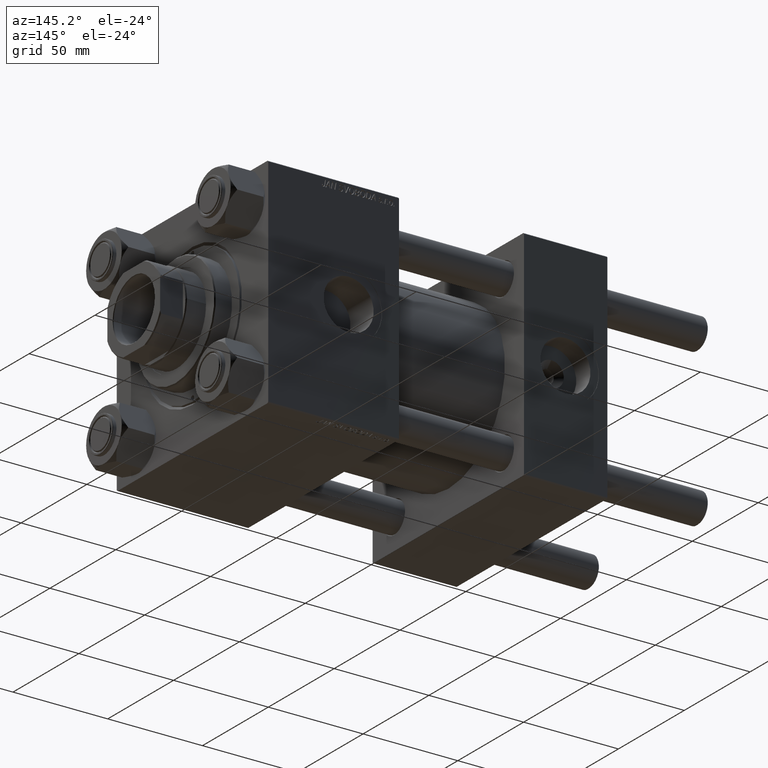
[diagram: clean part render]
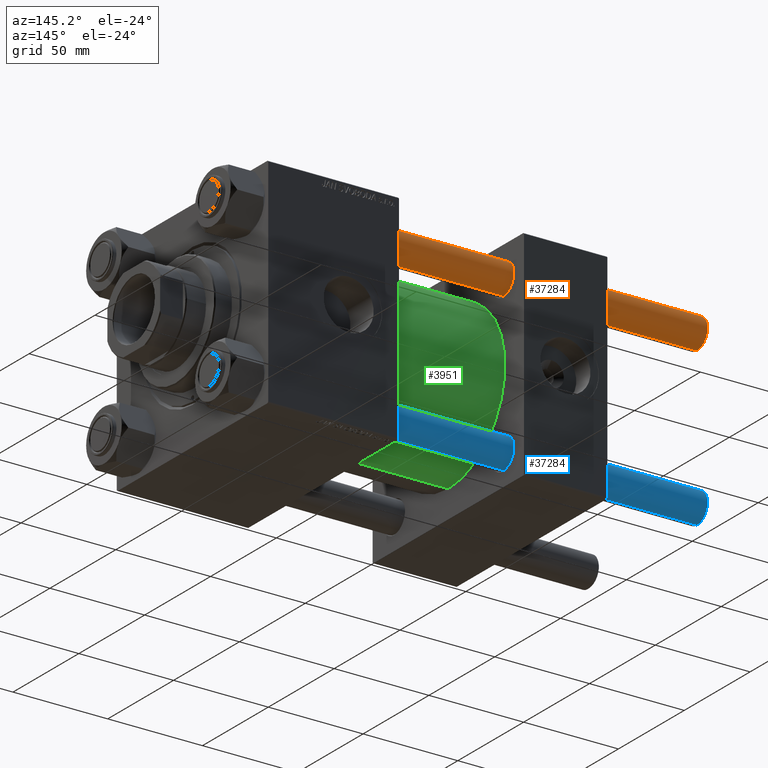
[diagram: same view with three faces highlighted in distinct colors, each labeled with its STEP entity id]
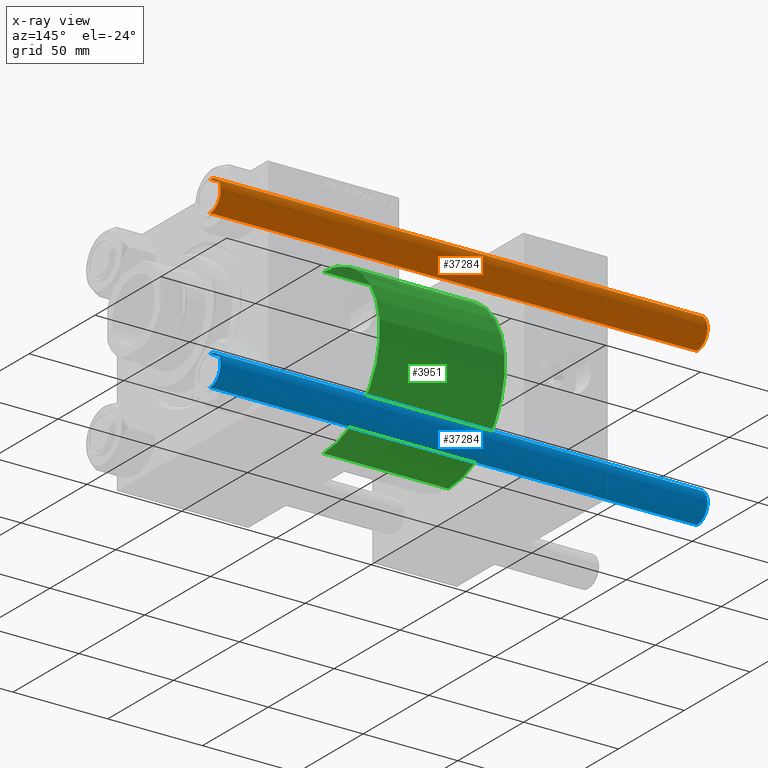
[diagram: x-ray of the same camera — body ghosted, the three highlighted faces saturated]
A machine part, auxiliary view with three faces highlighted in distinct colors.
The next image is the same camera in x-ray (body ghosted, the three faces saturated) — at least one of them is partly hidden behind the body in this view.
Their STEP definitions:

[orange] entity #37284 — the highlighted cylindrical surface (edge-blend (fillet) strip) has radius 8 mm, axis along (-1, -0, -0).
#51 = CARTESIAN_POINT ( 'NONE',  ( 8.000000000000000000, 9.797174393178825657E-16, 258.0000000000000000 ) ) ;
#449 = VERTEX_POINT ( 'NONE', #1011 ) ;
#679 = CIRCLE ( 'NONE', #45518, 8.000000000000000000 ) ;
#1011 = CARTESIAN_POINT ( 'NONE',  ( -8.000000000000000000, 0.000000000000000000, 0.4999999999999449329 ) ) ;
#3984 = DIRECTION ( 'NONE',  ( 0.000000000000000000, 0.000000000000000000, -1.000000000000000000 ) ) ;
#4682 = CIRCLE ( 'NONE', #39408, 8.000000000000000000 ) ;
#6852 = DIRECTION ( 'NONE',  ( 1.000000000000000000, 0.000000000000000000, 0.000000000000000000 ) ) ;
#8347 = VERTEX_POINT ( 'NONE', #30418 ) ;
#9004 = CARTESIAN_POINT ( 'NONE',  ( 0.000000000000000000, 0.000000000000000000, 257.4999999999999432 ) ) ;
#9964 = AXIS2_PLACEMENT_3D ( 'NONE', #49589, #50103, #20963 ) ;
#11445 = DIRECTION ( 'NONE',  ( -0.000000000000000000, -0.000000000000000000, -1.000000000000000000 ) ) ;
#12499 = LINE ( 'NONE', #51, #35887 ) ;
#18372 = LINE ( 'NONE', #34539, #29222 ) ;
#20963 = DIRECTION ( 'NONE',  ( -1.000000000000000000, 0.000000000000000000, 0.000000000000000000 ) ) ;
#25037 = EDGE_LOOP ( 'NONE', ( #35180, #36513, #44146, #30346 ) ) ;
#27449 = VERTEX_POINT ( 'NONE', #49198 ) ;
#29222 = VECTOR ( 'NONE', #50708, 1000.000000000000000 ) ;
#29332 = EDGE_CURVE ( 'NONE', #8347, #27449, #12499, .T. ) ;
#30346 = ORIENTED_EDGE ( 'NONE', *, *, #49715, .F. ) ;
#30418 = CARTESIAN_POINT ( 'NONE',  ( 8.000000000000000000, 9.797174393178825657E-16, 257.4999999999999432 ) ) ;
#31851 = EDGE_CURVE ( 'NONE', #27449, #449, #4682, .T. ) ;
#33806 = VERTEX_POINT ( 'NONE', #41697 ) ;
#34539 = CARTESIAN_POINT ( 'NONE',  ( -8.000000000000000000, 0.000000000000000000, 258.0000000000000000 ) ) ;
#35180 = ORIENTED_EDGE ( 'NONE', *, *, #38019, .T. ) ;
#35887 = VECTOR ( 'NONE', #11445, 1000.000000000000000 ) ;
#36272 = CARTESIAN_POINT ( 'NONE',  ( 0.000000000000000000, 0.000000000000000000, 0.4999999999999449329 ) ) ;
#36513 = ORIENTED_EDGE ( 'NONE', *, *, #29332, .T. ) ;
#37284 = ADVANCED_FACE ( 'NONE', ( #46135 ), #41127, .T. ) ;
#38019 = EDGE_CURVE ( 'NONE', #33806, #8347, #679, .T. ) ;
#39408 = AXIS2_PLACEMENT_3D ( 'NONE', #36272, #48209, #6852 ) ;
#41127 = CYLINDRICAL_SURFACE ( 'NONE', #9964, 8.000000000000000000 ) ;
#41357 = DIRECTION ( 'NONE',  ( 1.000000000000000000, 0.000000000000000000, 0.000000000000000000 ) ) ;
#41697 = CARTESIAN_POINT ( 'NONE',  ( -8.000000000000000000, 0.000000000000000000, 257.4999999999999432 ) ) ;
#44146 = ORIENTED_EDGE ( 'NONE', *, *, #31851, .T. ) ;
#45518 = AXIS2_PLACEMENT_3D ( 'NONE', #9004, #3984, #41357 ) ;
#46135 = FACE_OUTER_BOUND ( 'NONE', #25037, .T. ) ;
#48209 = DIRECTION ( 'NONE',  ( -0.000000000000000000, -0.000000000000000000, 1.000000000000000000 ) ) ;
#49198 = CARTESIAN_POINT ( 'NONE',  ( 8.000000000000000000, 9.797174393178825657E-16, 0.4999999999999449329 ) ) ;
#49589 = CARTESIAN_POINT ( 'NONE',  ( 0.000000000000000000, 0.000000000000000000, 258.0000000000000000 ) ) ;
#49715 = EDGE_CURVE ( 'NONE', #33806, #449, #18372, .T. ) ;
#50103 = DIRECTION ( 'NONE',  ( -0.000000000000000000, -0.000000000000000000, -1.000000000000000000 ) ) ;
#50708 = DIRECTION ( 'NONE',  ( -0.000000000000000000, -0.000000000000000000, -1.000000000000000000 ) ) ;

[blue] entity #37284 — the highlighted cylindrical surface (edge-blend (fillet) strip) has radius 8 mm, axis along (1, 0, -0).
#51 = CARTESIAN_POINT ( 'NONE',  ( 8.000000000000000000, 9.797174393178825657E-16, 258.0000000000000000 ) ) ;
#449 = VERTEX_POINT ( 'NONE', #1011 ) ;
#679 = CIRCLE ( 'NONE', #45518, 8.000000000000000000 ) ;
#1011 = CARTESIAN_POINT ( 'NONE',  ( -8.000000000000000000, 0.000000000000000000, 0.4999999999999449329 ) ) ;
#3984 = DIRECTION ( 'NONE',  ( 0.000000000000000000, 0.000000000000000000, -1.000000000000000000 ) ) ;
#4682 = CIRCLE ( 'NONE', #39408, 8.000000000000000000 ) ;
#6852 = DIRECTION ( 'NONE',  ( 1.000000000000000000, 0.000000000000000000, 0.000000000000000000 ) ) ;
#8347 = VERTEX_POINT ( 'NONE', #30418 ) ;
#9004 = CARTESIAN_POINT ( 'NONE',  ( 0.000000000000000000, 0.000000000000000000, 257.4999999999999432 ) ) ;
#9964 = AXIS2_PLACEMENT_3D ( 'NONE', #49589, #50103, #20963 ) ;
#11445 = DIRECTION ( 'NONE',  ( -0.000000000000000000, -0.000000000000000000, -1.000000000000000000 ) ) ;
#12499 = LINE ( 'NONE', #51, #35887 ) ;
#18372 = LINE ( 'NONE', #34539, #29222 ) ;
#20963 = DIRECTION ( 'NONE',  ( -1.000000000000000000, 0.000000000000000000, 0.000000000000000000 ) ) ;
#25037 = EDGE_LOOP ( 'NONE', ( #35180, #36513, #44146, #30346 ) ) ;
#27449 = VERTEX_POINT ( 'NONE', #49198 ) ;
#29222 = VECTOR ( 'NONE', #50708, 1000.000000000000000 ) ;
#29332 = EDGE_CURVE ( 'NONE', #8347, #27449, #12499, .T. ) ;
#30346 = ORIENTED_EDGE ( 'NONE', *, *, #49715, .F. ) ;
#30418 = CARTESIAN_POINT ( 'NONE',  ( 8.000000000000000000, 9.797174393178825657E-16, 257.4999999999999432 ) ) ;
#31851 = EDGE_CURVE ( 'NONE', #27449, #449, #4682, .T. ) ;
#33806 = VERTEX_POINT ( 'NONE', #41697 ) ;
#34539 = CARTESIAN_POINT ( 'NONE',  ( -8.000000000000000000, 0.000000000000000000, 258.0000000000000000 ) ) ;
#35180 = ORIENTED_EDGE ( 'NONE', *, *, #38019, .T. ) ;
#35887 = VECTOR ( 'NONE', #11445, 1000.000000000000000 ) ;
#36272 = CARTESIAN_POINT ( 'NONE',  ( 0.000000000000000000, 0.000000000000000000, 0.4999999999999449329 ) ) ;
#36513 = ORIENTED_EDGE ( 'NONE', *, *, #29332, .T. ) ;
#37284 = ADVANCED_FACE ( 'NONE', ( #46135 ), #41127, .T. ) ;
#38019 = EDGE_CURVE ( 'NONE', #33806, #8347, #679, .T. ) ;
#39408 = AXIS2_PLACEMENT_3D ( 'NONE', #36272, #48209, #6852 ) ;
#41127 = CYLINDRICAL_SURFACE ( 'NONE', #9964, 8.000000000000000000 ) ;
#41357 = DIRECTION ( 'NONE',  ( 1.000000000000000000, 0.000000000000000000, 0.000000000000000000 ) ) ;
#41697 = CARTESIAN_POINT ( 'NONE',  ( -8.000000000000000000, 0.000000000000000000, 257.4999999999999432 ) ) ;
#44146 = ORIENTED_EDGE ( 'NONE', *, *, #31851, .T. ) ;
#45518 = AXIS2_PLACEMENT_3D ( 'NONE', #9004, #3984, #41357 ) ;
#46135 = FACE_OUTER_BOUND ( 'NONE', #25037, .T. ) ;
#48209 = DIRECTION ( 'NONE',  ( -0.000000000000000000, -0.000000000000000000, 1.000000000000000000 ) ) ;
#49198 = CARTESIAN_POINT ( 'NONE',  ( 8.000000000000000000, 9.797174393178825657E-16, 0.4999999999999449329 ) ) ;
#49589 = CARTESIAN_POINT ( 'NONE',  ( 0.000000000000000000, 0.000000000000000000, 258.0000000000000000 ) ) ;
#49715 = EDGE_CURVE ( 'NONE', #33806, #449, #18372, .T. ) ;
#50103 = DIRECTION ( 'NONE',  ( -0.000000000000000000, -0.000000000000000000, -1.000000000000000000 ) ) ;
#50708 = DIRECTION ( 'NONE',  ( -0.000000000000000000, -0.000000000000000000, -1.000000000000000000 ) ) ;

[green] entity #3951 — the highlighted cylindrical surface (partial cylindrical patch) has radius 43 mm, axis along (-1, -0, -0).
#1409 = EDGE_LOOP ( 'NONE', ( #49182, #7962, #23719, #5095 ) ) ;
#2053 = DIRECTION ( 'NONE',  ( -1.000000000000000000, -0.000000000000000000, -0.000000000000000000 ) ) ;
#3403 = VERTEX_POINT ( 'NONE', #22361 ) ;
#3951 = ADVANCED_FACE ( 'NONE', ( #46577 ), #33599, .T. ) ;
#4507 = CARTESIAN_POINT ( 'NONE',  ( 110.0000000000000000, 5.265981236333618470E-15, -43.00000000000000000 ) ) ;
#5057 = DIRECTION ( 'NONE',  ( 1.000000000000000000, 0.000000000000000000, 0.000000000000000000 ) ) ;
#5095 = ORIENTED_EDGE ( 'NONE', *, *, #8091, .F. ) ;
#6222 = AXIS2_PLACEMENT_3D ( 'NONE', #27866, #7725, #44051 ) ;
#7725 = DIRECTION ( 'NONE',  ( 1.000000000000000000, -0.000000000000000000, 0.000000000000000000 ) ) ;
#7962 = ORIENTED_EDGE ( 'NONE', *, *, #37593, .T. ) ;
#8007 = DIRECTION ( 'NONE',  ( -1.000000000000000000, -0.000000000000000000, -0.000000000000000000 ) ) ;
#8091 = EDGE_CURVE ( 'NONE', #3403, #39929, #38183, .T. ) ;
#9995 = CARTESIAN_POINT ( 'NONE',  ( 110.0000000000000000, 0.000000000000000000, 0.000000000000000000 ) ) ;
#13924 = AXIS2_PLACEMENT_3D ( 'NONE', #36142, #5057, #29170 ) ;
#17837 = VECTOR ( 'NONE', #29704, 1000.000000000000000 ) ;
#22361 = CARTESIAN_POINT ( 'NONE',  ( 110.0000000000000000, 0.000000000000000000, 43.00000000000000000 ) ) ;
#22482 = VERTEX_POINT ( 'NONE', #4507 ) ;
#23719 = ORIENTED_EDGE ( 'NONE', *, *, #24637, .T. ) ;
#24179 = CARTESIAN_POINT ( 'NONE',  ( 110.0000000000000000, 5.265981236333618470E-15, -43.00000000000000000 ) ) ;
#24433 = CARTESIAN_POINT ( 'NONE',  ( 44.00000000000000000, 5.265981236333618470E-15, -43.00000000000000000 ) ) ;
#24637 = EDGE_CURVE ( 'NONE', #40933, #39929, #34148, .T. ) ;
#26239 = CARTESIAN_POINT ( 'NONE',  ( 110.0000000000000000, 0.000000000000000000, 43.00000000000000000 ) ) ;
#27866 = CARTESIAN_POINT ( 'NONE',  ( 44.00000000000000000, 0.000000000000000000, 0.000000000000000000 ) ) ;
#29170 = DIRECTION ( 'NONE',  ( 0.000000000000000000, 0.000000000000000000, -1.000000000000000000 ) ) ;
#29704 = DIRECTION ( 'NONE',  ( -1.000000000000000000, -0.000000000000000000, -0.000000000000000000 ) ) ;
#30286 = VECTOR ( 'NONE', #8007, 1000.000000000000000 ) ;
#31707 = CIRCLE ( 'NONE', #13924, 43.00000000000000000 ) ;
#33599 = CYLINDRICAL_SURFACE ( 'NONE', #48319, 43.00000000000000000 ) ;
#34116 = DIRECTION ( 'NONE',  ( 0.000000000000000000, 0.000000000000000000, 1.000000000000000000 ) ) ;
#34148 = CIRCLE ( 'NONE', #6222, 43.00000000000000000 ) ;
#36142 = CARTESIAN_POINT ( 'NONE',  ( 110.0000000000000000, 0.000000000000000000, 0.000000000000000000 ) ) ;
#37593 = EDGE_CURVE ( 'NONE', #22482, #40933, #39294, .T. ) ;
#38157 = CARTESIAN_POINT ( 'NONE',  ( 44.00000000000000000, 0.000000000000000000, 43.00000000000000000 ) ) ;
#38183 = LINE ( 'NONE', #26239, #17837 ) ;
#39294 = LINE ( 'NONE', #24179, #30286 ) ;
#39929 = VERTEX_POINT ( 'NONE', #38157 ) ;
#40933 = VERTEX_POINT ( 'NONE', #24433 ) ;
#44051 = DIRECTION ( 'NONE',  ( 0.000000000000000000, 0.000000000000000000, 1.000000000000000000 ) ) ;
#46577 = FACE_OUTER_BOUND ( 'NONE', #1409, .T. ) ;
#48319 = AXIS2_PLACEMENT_3D ( 'NONE', #9995, #2053, #34116 ) ;
#49182 = ORIENTED_EDGE ( 'NONE', *, *, #51710, .F. ) ;
#51710 = EDGE_CURVE ( 'NONE', #22482, #3403, #31707, .T. ) ;